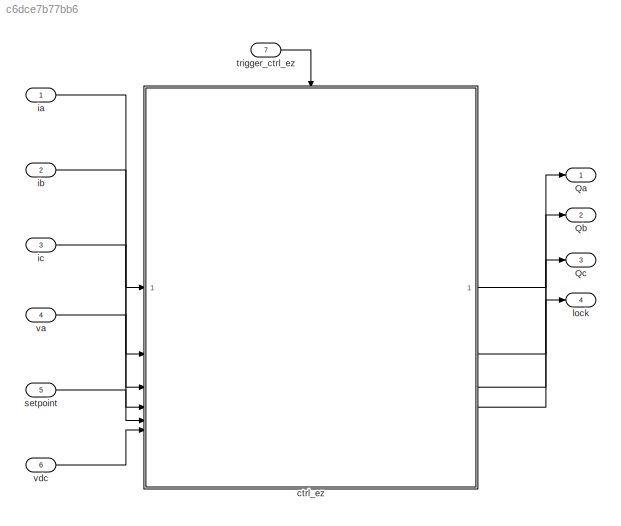
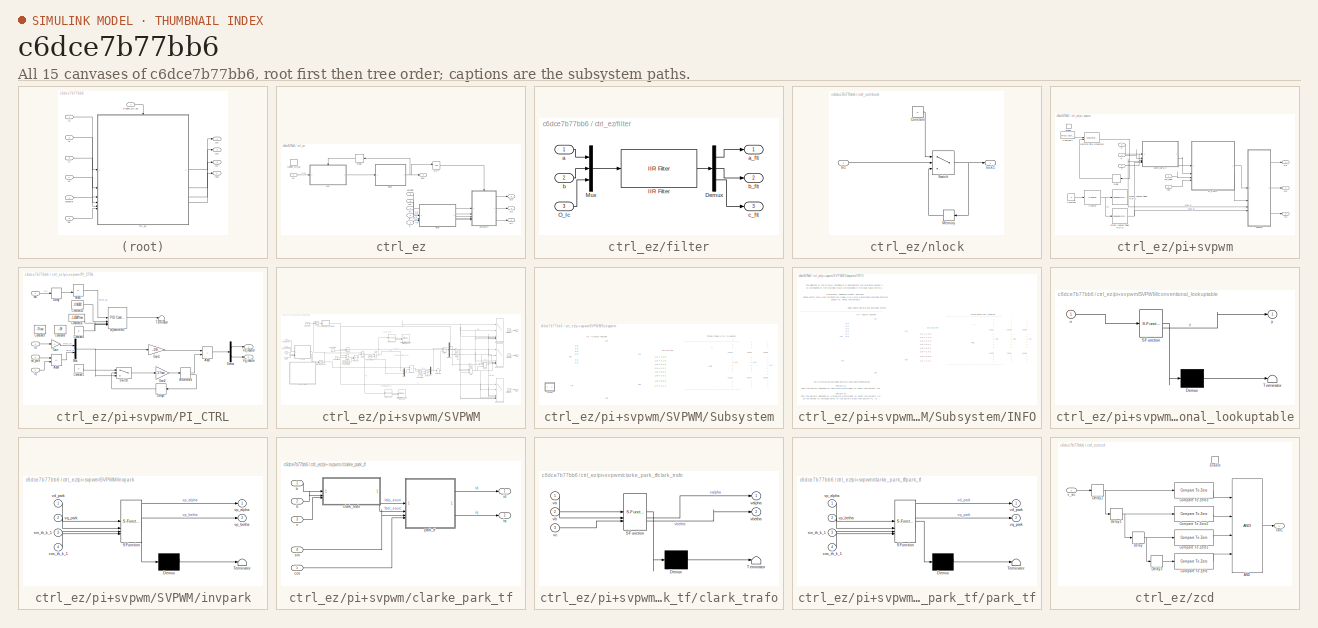
[diagram: thumbnail index - all 15 canvases of the model, root first then tree order]
MODEL slx_c6dce7b77bb6
KIND model
CONFIG AbsTol = auto
CONFIG EnableMultiTasking = on
CONFIG FixedStep = auto
CONFIG InitFcn = fidelity_pfc_vals;\n
CONFIG MaxStep = auto
CONFIG MinStep = auto
CONFIG RelTol = 1e-3
CONFIG SampleTimeConstraint = Unconstrained
CONFIG SolverName = FixedStepDiscrete
CONFIG StartTime = 0.0
CONFIG StopTime = 10.0
BLOCK [Outport] Qa
  OutDataTypeStr = single
  PortDimensions = 1
  SamplingMode = Sample based
  SignalType = real
BLOCK [Outport] Qb
  OutDataTypeStr = single
  Port = 2
  PortDimensions = 1
  SamplingMode = Sample based
  SignalType = real
BLOCK [Outport] Qc
  OutDataTypeStr = single
  Port = 3
  PortDimensions = 1
  SamplingMode = Sample based
  SignalType = real
BLOCK [SubSystem] ctrl_ez
BLOCK [Delay] ctrl_ez/Delay
  DelayLength = 1
  InputPortMap = u0
  NameLocation = top
BLOCK [Logic] ctrl_ez/NOT
  AllPortsSameDT = off
  IconShape = distinctive
  Operator = NOT
  OutDataTypeStr = boolean
BLOCK [Outport] ctrl_ez/Qa
  SignalType = real
  VarSizeSig = No
BLOCK [Outport] ctrl_ez/Qb
  Port = 2
  SignalType = real
  VarSizeSig = No
BLOCK [Outport] ctrl_ez/Qc
  Port = 3
  SignalType = real
  VarSizeSig = No
BLOCK [SubSystem] ctrl_ez/filter
  Commented = through
BLOCK [Demux] ctrl_ez/filter/Demux
  Outputs = 3
BLOCK [Reference] ctrl_ez/filter/IIR Filter  REF=mcbcontrolslib/IIR Filter
  SourceBlock = mcbcontrolslib/IIR Filter
  SourceType = IIR Filter
BLOCK [Mux] ctrl_ez/filter/Mux
  DisplayOption = bar
  Inputs = 3
BLOCK [Inport] ctrl_ez/filter/O_Ic
  Port = 3
BLOCK [Inport] ctrl_ez/filter/a
BLOCK [Outport] ctrl_ez/filter/a_flt
BLOCK [Inport] ctrl_ez/filter/b
  Port = 2
BLOCK [Outport] ctrl_ez/filter/b_flt
  Port = 2
BLOCK [Outport] ctrl_ez/filter/c_flt
  Port = 3
BLOCK [Inport] ctrl_ez/ia
  OutDataTypeStr = single
BLOCK [Inport] ctrl_ez/ib
  OutDataTypeStr = single
  Port = 2
BLOCK [Inport] ctrl_ez/ic
  Port = 3
BLOCK [Outport] ctrl_ez/lock
  Port = 4
BLOCK [SubSystem] ctrl_ez/nlock
BLOCK [Constant] ctrl_ez/nlock/Constant
  OutDataTypeStr = boolean
  SampleTime = -1
  Value = 0
BLOCK [Inport] ctrl_ez/nlock/In1
BLOCK [Memory] ctrl_ez/nlock/Memory
  InheritSampleTime = on
  InitialCondition = 1
  NameLocation = top
BLOCK [Switch] ctrl_ez/nlock/Switch
  Criteria = u2 > Threshold
  InputSameDT = off
  SaturateOnIntegerOverflow = off
BLOCK [Outport] ctrl_ez/nlock/lock1
BLOCK [SubSystem] ctrl_ez/pi+svpwm
BLOCK [Constant] ctrl_ez/pi+svpwm/Constant
  SampleTime = -1
  Value = 0
BLOCK [Constant] ctrl_ez/pi+svpwm/Constant1
  Commented = on
  SampleTime = -1
  Value = pi*2/(.01/tsw)
BLOCK [Reference] ctrl_ez/pi+svpwm/Counter  REF=dspswit3/Counter
  SourceBlock = dspswit3/Counter
  SourceType = Counter
BLOCK [Delay] ctrl_ez/pi+svpwm/Delay
  Commented = on
  InputPortMap = u0
  NameLocation = top
BLOCK [LookupNDDirect] ctrl_ez/pi+svpwm/Direct Lookup Table (n-D)1
  NumberOfTableDimensions = 1
  RemoveProtectionInput = on
  Table = single(sin_th);
  TableDataTypeStr = single
BLOCK [LookupNDDirect] ctrl_ez/pi+svpwm/Direct Lookup Table (n-D)2
  NumberOfTableDimensions = 1
  RemoveProtectionInput = on
  Table = single(cos_th);
  TableDataTypeStr = single
BLOCK [DiscreteIntegrator] ctrl_ez/pi+svpwm/Discrete-Time Integrator
  Commented = on
  ExternalReset = level
  ICPrevOutput = DiscIntNeverNeededParam
  ICPrevScaledInput = DiscIntNeverNeededParam
  InitialConditionSetting = Auto
  IntegratorMethod = Accumulation: Forward Euler
  LimitOutput = on
  SampleTime = -1
  SaturateOnIntegerOverflow = on
  ShowSaturationPort = on
  UpperSaturationLimit = pi*2
  gainval = 1
BLOCK [EnablePort] ctrl_ez/pi+svpwm/Enable
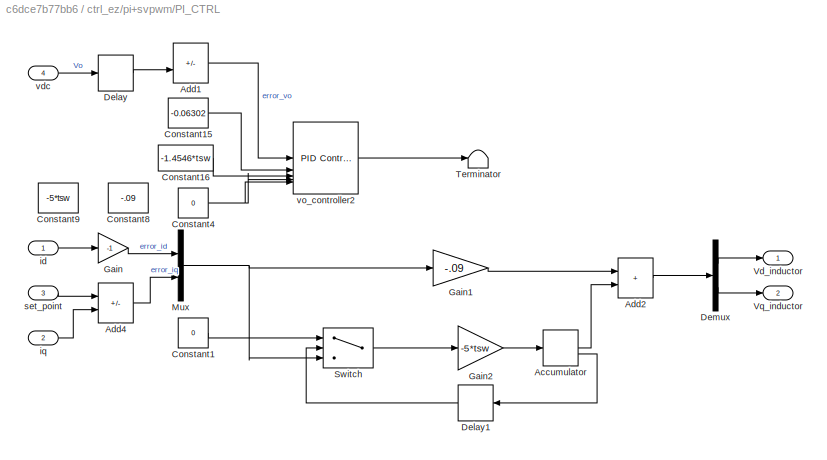
BLOCK [SubSystem] ctrl_ez/pi+svpwm/PI_CTRL
  SystemSampleTime = tsw
BLOCK [DiscreteIntegrator] ctrl_ez/pi+svpwm/PI_CTRL/Accumulator
  ICPrevOutput = DiscIntNeverNeededParam
  ICPrevScaledInput = DiscIntNeverNeededParam
  InitialConditionSetting = Auto
  IntegratorMethod = Accumulation: Forward Euler
  LowerSaturationLimit = -50
  SampleTime = -1
  ShowSaturationPort = on
  UpperSaturationLimit = 50
BLOCK [Sum] ctrl_ez/pi+svpwm/PI_CTRL/Add1
  Commented = on
  IconShape = rectangular
  Inputs = +-
BLOCK [Sum] ctrl_ez/pi+svpwm/PI_CTRL/Add2
  IconShape = rectangular
BLOCK [Sum] ctrl_ez/pi+svpwm/PI_CTRL/Add4
  IconShape = rectangular
  Inputs = +-
BLOCK [Constant] ctrl_ez/pi+svpwm/PI_CTRL/Constant1
  OutDataTypeStr = single
  SampleTime = -1
  Value = 0
BLOCK [Constant] ctrl_ez/pi+svpwm/PI_CTRL/Constant15
  Commented = on
  OutDataTypeStr = single
  SampleTime = -1
  Value = -0.06302
BLOCK [Constant] ctrl_ez/pi+svpwm/PI_CTRL/Constant16
  Commented = on
  OutDataTypeStr = single
  SampleTime = -1
  Value = -1.4546*tsw
BLOCK [Constant] ctrl_ez/pi+svpwm/PI_CTRL/Constant4
  OutDataTypeStr = single
  SampleTime = -1
  Value = 0
BLOCK [Constant] ctrl_ez/pi+svpwm/PI_CTRL/Constant8
  OutDataTypeStr = single
  SampleTime = -1
  Value = -.09
BLOCK [Constant] ctrl_ez/pi+svpwm/PI_CTRL/Constant9
  OutDataTypeStr = single
  SampleTime = -1
  Value = -5*tsw
BLOCK [Delay] ctrl_ez/pi+svpwm/PI_CTRL/Delay
  Commented = on
  DelayLength = 1
  InitialCondition = 580
  InputPortMap = u0
BLOCK [Delay] ctrl_ez/pi+svpwm/PI_CTRL/Delay1
  DelayLength = 1
  InputPortMap = u0
  InputProcessing = Columns as channels (frame based)
  NameLocation = top
BLOCK [Demux] ctrl_ez/pi+svpwm/PI_CTRL/Demux
  Outputs = 2
BLOCK [Gain] ctrl_ez/pi+svpwm/PI_CTRL/Gain
  Gain = -1
  OutDataTypeStr = single
BLOCK [Gain] ctrl_ez/pi+svpwm/PI_CTRL/Gain1
  Gain = -.09
  OutDataTypeStr = single
BLOCK [Gain] ctrl_ez/pi+svpwm/PI_CTRL/Gain2
  Gain = -5*tsw
  OutDataTypeStr = single
BLOCK [Mux] ctrl_ez/pi+svpwm/PI_CTRL/Mux
  DisplayOption = bar
  Inputs = 2
BLOCK [Switch] ctrl_ez/pi+svpwm/PI_CTRL/Switch
  Criteria = u2 > Threshold
  InputSameDT = off
  SaturateOnIntegerOverflow = off
BLOCK [Terminator] ctrl_ez/pi+svpwm/PI_CTRL/Terminator
BLOCK [Outport] ctrl_ez/pi+svpwm/PI_CTRL/Vd_inductor
BLOCK [Outport] ctrl_ez/pi+svpwm/PI_CTRL/Vq_inductor
  Port = 2
BLOCK [Inport] ctrl_ez/pi+svpwm/PI_CTRL/id
BLOCK [Inport] ctrl_ez/pi+svpwm/PI_CTRL/iq
  OutDataTypeStr = single
  Port = 2
BLOCK [Inport] ctrl_ez/pi+svpwm/PI_CTRL/set_point
  Port = 3
BLOCK [Inport] ctrl_ez/pi+svpwm/PI_CTRL/vdc
  Port = 4
BLOCK [Reference] ctrl_ez/pi+svpwm/PI_CTRL/vo_controller2  REF=slpidlib/PID Controller
  Commented = on
  NameLocation = right
  SourceBlock = slpidlib/PID Controller
  SourceType = PID 1dof
BLOCK [Outport] ctrl_ez/pi+svpwm/Qa
BLOCK [Outport] ctrl_ez/pi+svpwm/Qb
  Port = 2
BLOCK [Outport] ctrl_ez/pi+svpwm/Qc
  Port = 3
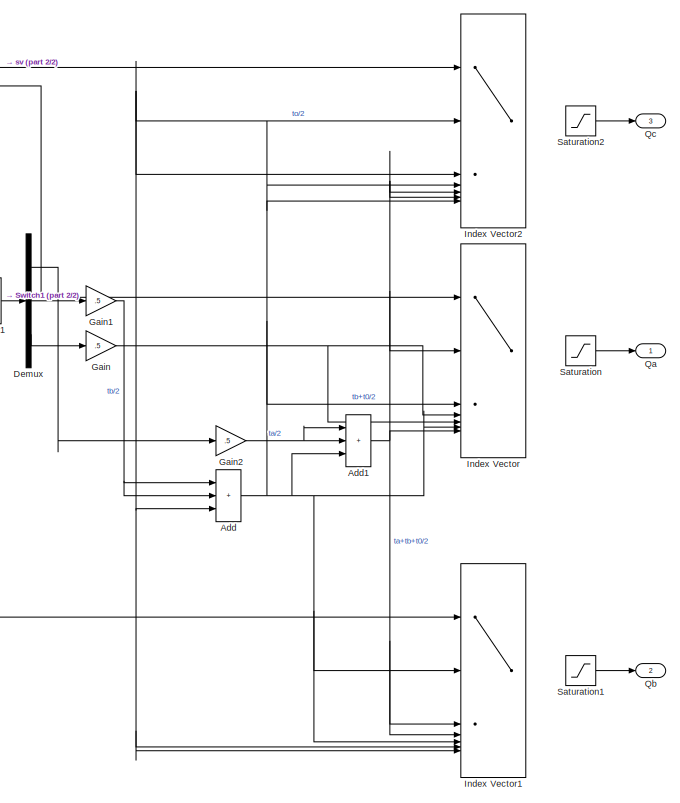
[diagram: ctrl_ez/pi+svpwm/SVPWM - part 1/2, right side, full height]
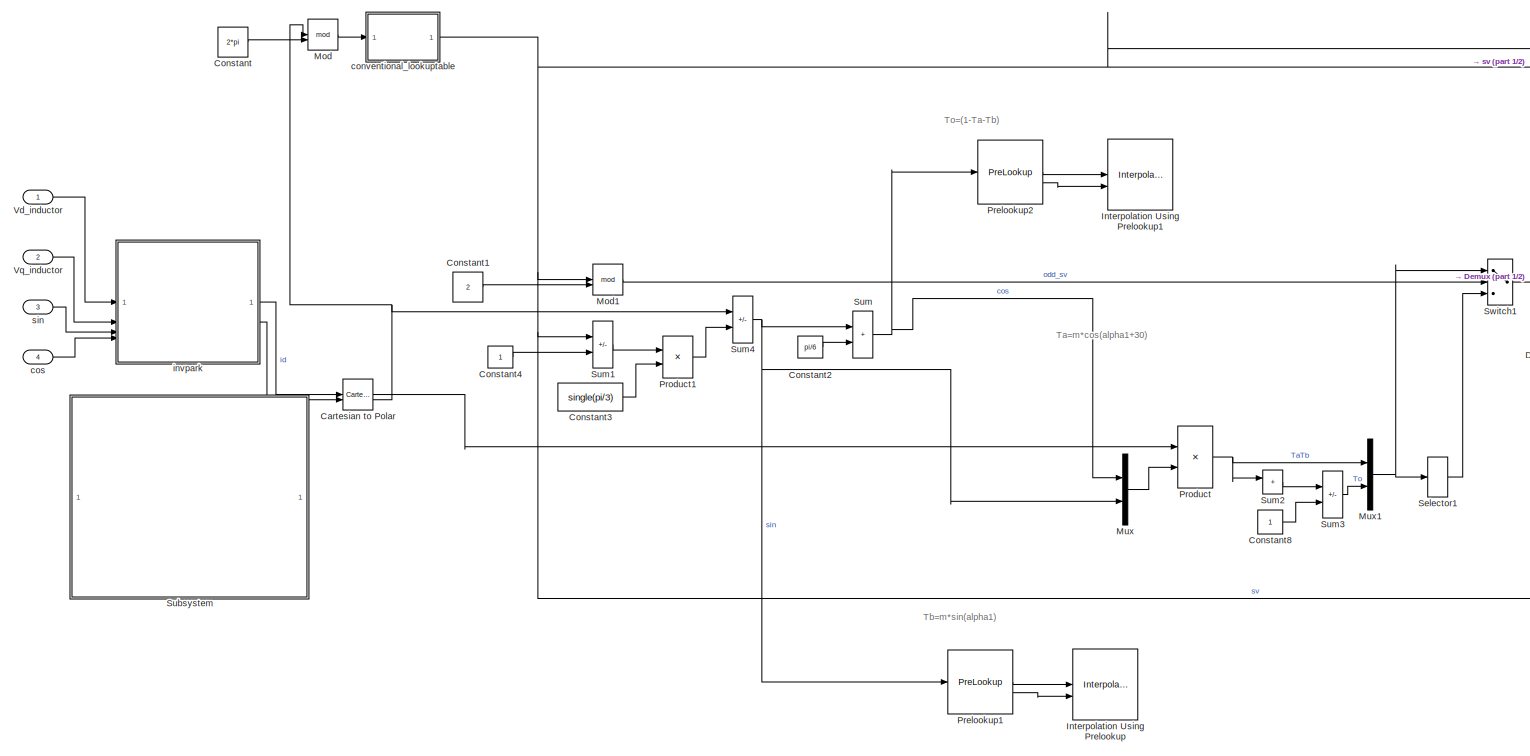
[diagram: ctrl_ez/pi+svpwm/SVPWM - part 2/2, center side, full height]
BLOCK [SubSystem] ctrl_ez/pi+svpwm/SVPWM
  SystemSampleTime = tsw
BLOCK [Sum] ctrl_ez/pi+svpwm/SVPWM/Add
  Commented = on
  IconShape = rectangular
  Inputs = +++
BLOCK [Sum] ctrl_ez/pi+svpwm/SVPWM/Add1
  Commented = on
  IconShape = rectangular
  Inputs = +++
BLOCK [Reference] ctrl_ez/pi+svpwm/SVPWM/Cartesian to Polar  REF=simulink_extras/Transformations/Cartesian to
Polar
  SourceBlock = simulink_extras/Transformations/Cartesian to\nPolar
  SourceType = Cart2Polar
BLOCK [Constant] ctrl_ez/pi+svpwm/SVPWM/Constant
  OutDataTypeStr = single
  SampleTime = -1
  Value = 2*pi
BLOCK [Constant] ctrl_ez/pi+svpwm/SVPWM/Constant1
  Commented = on
  OutDataTypeStr = single
  SampleTime = -1
  Value = 2
BLOCK [Constant] ctrl_ez/pi+svpwm/SVPWM/Constant2
  Commented = on
  OutDataTypeStr = single
  SampleTime = -1
  Value = pi/6
BLOCK [Constant] ctrl_ez/pi+svpwm/SVPWM/Constant3
  OutDataTypeStr = single
  SampleTime = -1
  Value = single(pi/3)
  VectorParams1D = off
BLOCK [Constant] ctrl_ez/pi+svpwm/SVPWM/Constant4
  OutDataTypeStr = single
  SampleTime = -1
BLOCK [Constant] ctrl_ez/pi+svpwm/SVPWM/Constant8
  Commented = on
  OutDataTypeStr = single
  SampleTime = -1
BLOCK [Demux] ctrl_ez/pi+svpwm/SVPWM/Demux
  Commented = on
  Outputs = 3
BLOCK [Gain] ctrl_ez/pi+svpwm/SVPWM/Gain
  Commented = on
  Gain = .5
  OutDataTypeStr = single
BLOCK [Gain] ctrl_ez/pi+svpwm/SVPWM/Gain1
  Commented = on
  Gain = .5
  OutDataTypeStr = single
BLOCK [Gain] ctrl_ez/pi+svpwm/SVPWM/Gain2
  Commented = on
  Gain = .5
  OutDataTypeStr = single
BLOCK [MultiPortSwitch] ctrl_ez/pi+svpwm/SVPWM/Index Vector
  Commented = on
  DiagnosticForDefault = None
  InputSameDT = off
  Inputs = 6
  SaturateOnIntegerOverflow = off
BLOCK [MultiPortSwitch] ctrl_ez/pi+svpwm/SVPWM/Index Vector1
  Commented = on
  DiagnosticForDefault = None
  InputSameDT = off
  Inputs = 6
  SaturateOnIntegerOverflow = off
BLOCK [MultiPortSwitch] ctrl_ez/pi+svpwm/SVPWM/Index Vector2
  Commented = on
  DiagnosticForDefault = None
  InputSameDT = off
  Inputs = 6
  SaturateOnIntegerOverflow = off
BLOCK [Interpolation_n-D] ctrl_ez/pi+svpwm/SVPWM/Interpolation Using Prelookup
  Commented = on
  InputPortMap = u0,u1
  IntermediateResultsDataTypeStr = Inherit: Inherit via internal rule
  InternalRulePriority = Speed
  InterpMethod = Flat
  NumberOfTableDimensions = 1
  RemoveProtectionIndex = on
  Table = single(sin(0:2*pi/1024:2*pi))
  ValidIndexMayReachLast = on
BLOCK [Interpolation_n-D] ctrl_ez/pi+svpwm/SVPWM/Interpolation Using Prelookup1
  Commented = on
  InputPortMap = u0,u1
  IntermediateResultsDataTypeStr = Inherit: Inherit via internal rule
  InternalRulePriority = Speed
  InterpMethod = Flat
  NumberOfTableDimensions = 1
  RemoveProtectionIndex = on
  Table = single(cos(0:2*pi/1024:2*pi))
  ValidIndexMayReachLast = on
BLOCK [Math] ctrl_ez/pi+svpwm/SVPWM/Mod
  Operator = mod
BLOCK [Math] ctrl_ez/pi+svpwm/SVPWM/Mod1
  Commented = on
  Operator = mod
BLOCK [Mux] ctrl_ez/pi+svpwm/SVPWM/Mux
  Commented = on
  DisplayOption = bar
  Inputs = 2
BLOCK [Mux] ctrl_ez/pi+svpwm/SVPWM/Mux1
  Commented = on
  DisplayOption = bar
  Inputs = 2
BLOCK [PreLookup] ctrl_ez/pi+svpwm/SVPWM/Prelookup1
  BeginIndexSearchUsingPreviousIndexResult = on
  BreakpointsData = single((0:2*pi/1024:2*pi))
  Commented = on
  IndexSearchMethod = Evenly spaced points
  InputPortMap = u0
  UseLastBreakpoint = on
BLOCK [PreLookup] ctrl_ez/pi+svpwm/SVPWM/Prelookup2
  BeginIndexSearchUsingPreviousIndexResult = on
  BreakpointsData = single((0:2*pi/1024:2*pi))
  Commented = on
  IndexSearchMethod = Evenly spaced points
  InputPortMap = u0
  UseLastBreakpoint = on
BLOCK [Product] ctrl_ez/pi+svpwm/SVPWM/Product
  Commented = on
  OutDataTypeStr = Inherit: Same as first input
  SaturateOnIntegerOverflow = on
BLOCK [Product] ctrl_ez/pi+svpwm/SVPWM/Product1
  OutDataTypeStr = single
BLOCK [Outport] ctrl_ez/pi+svpwm/SVPWM/Qa
BLOCK [Outport] ctrl_ez/pi+svpwm/SVPWM/Qb
  Port = 2
BLOCK [Outport] ctrl_ez/pi+svpwm/SVPWM/Qc
  Port = 3
BLOCK [Saturate] ctrl_ez/pi+svpwm/SVPWM/Saturation
  LowerLimit = .03
  UpperLimit = .98
BLOCK [Saturate] ctrl_ez/pi+svpwm/SVPWM/Saturation1
  LowerLimit = .03
  UpperLimit = .98
BLOCK [Saturate] ctrl_ez/pi+svpwm/SVPWM/Saturation2
  LowerLimit = .03
  UpperLimit = .98
BLOCK [Selector] ctrl_ez/pi+svpwm/SVPWM/Selector1
  Commented = on
  IndexOptions = Index vector (dialog)
  Indices = [2 1 3]
  InputPortWidth = 3
  OutputSizes = 1
BLOCK [SubSystem] ctrl_ez/pi+svpwm/SVPWM/Subsystem
BLOCK [SubSystem] ctrl_ez/pi+svpwm/SVPWM/Subsystem/INFO
BLOCK [Sum] ctrl_ez/pi+svpwm/SVPWM/Sum
  Commented = on
  IconShape = rectangular
  SaturateOnIntegerOverflow = on
BLOCK [Sum] ctrl_ez/pi+svpwm/SVPWM/Sum1
  IconShape = rectangular
  Inputs = +-
  SaturateOnIntegerOverflow = on
BLOCK [Sum] ctrl_ez/pi+svpwm/SVPWM/Sum2
  Commented = on
  IconShape = rectangular
  Inputs = 1
  SaturateOnIntegerOverflow = on
BLOCK [Sum] ctrl_ez/pi+svpwm/SVPWM/Sum3
  Commented = on
  IconShape = rectangular
  Inputs = -+
  SaturateOnIntegerOverflow = on
BLOCK [Sum] ctrl_ez/pi+svpwm/SVPWM/Sum4
  IconShape = rectangular
  Inputs = +-
  SaturateOnIntegerOverflow = on
BLOCK [Switch] ctrl_ez/pi+svpwm/SVPWM/Switch1
  Commented = on
  InputSameDT = off
  Threshold = 0.5
BLOCK [Inport] ctrl_ez/pi+svpwm/SVPWM/Vd_inductor
BLOCK [Inport] ctrl_ez/pi+svpwm/SVPWM/Vq_inductor
  Port = 2
BLOCK [SubSystem] ctrl_ez/pi+svpwm/SVPWM/conventional_lookuptable
  ErrorFcn = Stateflow.Translate.translate
  PermitHierarchicalResolution = ExplicitOnly
  SFBlockType = MATLAB Function
  TreatAsAtomicUnit = on
BLOCK [Demux] ctrl_ez/pi+svpwm/SVPWM/conventional_lookuptable/ Demux 
  Outputs = 1
BLOCK [S-Function] ctrl_ez/pi+svpwm/SVPWM/conventional_lookuptable/ SFunction 
  EnableBusSupport = on
  FunctionName = sf_sfun
  PortCounts = [1 2]
  SFcnIsStateOwnerBlock = off
  SFunctionDeploymentMode = off
  Tag = Stateflow S-Function 2
BLOCK [Terminator] ctrl_ez/pi+svpwm/SVPWM/conventional_lookuptable/ Terminator 
BLOCK [Inport] ctrl_ez/pi+svpwm/SVPWM/conventional_lookuptable/u
BLOCK [Outport] ctrl_ez/pi+svpwm/SVPWM/conventional_lookuptable/y
BLOCK [Inport] ctrl_ez/pi+svpwm/SVPWM/cos
  Port = 4
BLOCK [SubSystem] ctrl_ez/pi+svpwm/SVPWM/invpark
  ErrorFcn = Stateflow.Translate.translate
  LibrarySourceBlock = simulink/User-Defined\nFunctions/MATLAB Function
  PermitHierarchicalResolution = ExplicitOnly
  SFBlockType = MATLAB Function
  TreatAsAtomicUnit = on
  VariantControl = false()
BLOCK [Demux] ctrl_ez/pi+svpwm/SVPWM/invpark/ Demux 
  Outputs = 1
BLOCK [S-Function] ctrl_ez/pi+svpwm/SVPWM/invpark/ SFunction 
  EnableBusSupport = on
  FunctionName = sf_sfun
  PortCounts = [4 3]
  SFcnIsStateOwnerBlock = off
  SFunctionDeploymentMode = off
  Tag = Stateflow S-Function 1
BLOCK [Terminator] ctrl_ez/pi+svpwm/SVPWM/invpark/ Terminator 
BLOCK [Inport] ctrl_ez/pi+svpwm/SVPWM/invpark/cos_th_k_1
  Port = 4
BLOCK [Inport] ctrl_ez/pi+svpwm/SVPWM/invpark/sin_th_k_1
  Port = 3
BLOCK [Inport] ctrl_ez/pi+svpwm/SVPWM/invpark/vd_park
BLOCK [Outport] ctrl_ez/pi+svpwm/SVPWM/invpark/vp_alpha
BLOCK [Outport] ctrl_ez/pi+svpwm/SVPWM/invpark/vp_betha
  Port = 2
BLOCK [Inport] ctrl_ez/pi+svpwm/SVPWM/invpark/vq_park
  Port = 2
BLOCK [Inport] ctrl_ez/pi+svpwm/SVPWM/sin
  Port = 3
BLOCK [Inport] ctrl_ez/pi+svpwm/a
  Port = 3
BLOCK [Inport] ctrl_ez/pi+svpwm/b
  Port = 4
BLOCK [Inport] ctrl_ez/pi+svpwm/c
  Port = 5
BLOCK [SubSystem] ctrl_ez/pi+svpwm/clarke_park_tf
BLOCK [Inport] ctrl_ez/pi+svpwm/clarke_park_tf/a
BLOCK [Inport] ctrl_ez/pi+svpwm/clarke_park_tf/b
  Port = 2
BLOCK [Inport] ctrl_ez/pi+svpwm/clarke_park_tf/c
  Port = 3
BLOCK [SubSystem] ctrl_ez/pi+svpwm/clarke_park_tf/clark_trafo
  ErrorFcn = Stateflow.Translate.translate
  LibrarySourceBlock = simulink/User-Defined\nFunctions/MATLAB Function
  PermitHierarchicalResolution = ExplicitOnly
  SFBlockType = MATLAB Function
  TreatAsAtomicUnit = on
BLOCK [Demux] ctrl_ez/pi+svpwm/clarke_park_tf/clark_trafo/ Demux 
  Outputs = 1
BLOCK [S-Function] ctrl_ez/pi+svpwm/clarke_park_tf/clark_trafo/ SFunction 
  EnableBusSupport = on
  FunctionName = sf_sfun
  PortCounts = [3 3]
  SFcnIsStateOwnerBlock = off
  SFunctionDeploymentMode = off
  Tag = Stateflow S-Function 10
BLOCK [Terminator] ctrl_ez/pi+svpwm/clarke_park_tf/clark_trafo/ Terminator 
BLOCK [Inport] ctrl_ez/pi+svpwm/clarke_park_tf/clark_trafo/va
BLOCK [Outport] ctrl_ez/pi+svpwm/clarke_park_tf/clark_trafo/valpha
BLOCK [Inport] ctrl_ez/pi+svpwm/clarke_park_tf/clark_trafo/vb
  Port = 2
BLOCK [Outport] ctrl_ez/pi+svpwm/clarke_park_tf/clark_trafo/vbetha
  Port = 2
BLOCK [Inport] ctrl_ez/pi+svpwm/clarke_park_tf/clark_trafo/vc
  Port = 3
BLOCK [Inport] ctrl_ez/pi+svpwm/clarke_park_tf/cos
  Port = 5
BLOCK [Outport] ctrl_ez/pi+svpwm/clarke_park_tf/id
BLOCK [Outport] ctrl_ez/pi+svpwm/clarke_park_tf/iq
  Port = 2
BLOCK [SubSystem] ctrl_ez/pi+svpwm/clarke_park_tf/park_tf
  ErrorFcn = Stateflow.Translate.translate
  LibrarySourceBlock = simulink/User-Defined\nFunctions/MATLAB Function
  PermitHierarchicalResolution = ExplicitOnly
  SFBlockType = MATLAB Function
  TreatAsAtomicUnit = on
  VariantControl = false()
BLOCK [Demux] ctrl_ez/pi+svpwm/clarke_park_tf/park_tf/ Demux 
  Outputs = 1
BLOCK [S-Function] ctrl_ez/pi+svpwm/clarke_park_tf/park_tf/ SFunction 
  EnableBusSupport = on
  FunctionName = sf_sfun
  PortCounts = [4 3]
  SFcnIsStateOwnerBlock = off
  SFunctionDeploymentMode = off
  Tag = Stateflow S-Function 24
BLOCK [Terminator] ctrl_ez/pi+svpwm/clarke_park_tf/park_tf/ Terminator 
BLOCK [Inport] ctrl_ez/pi+svpwm/clarke_park_tf/park_tf/cos_th_k_1
  Port = 4
BLOCK [Inport] ctrl_ez/pi+svpwm/clarke_park_tf/park_tf/sin_th_k_1
  Port = 3
BLOCK [Outport] ctrl_ez/pi+svpwm/clarke_park_tf/park_tf/vd_park
BLOCK [Inport] ctrl_ez/pi+svpwm/clarke_park_tf/park_tf/vp_alpha
BLOCK [Inport] ctrl_ez/pi+svpwm/clarke_park_tf/park_tf/vp_betha
  Port = 2
BLOCK [Outport] ctrl_ez/pi+svpwm/clarke_park_tf/park_tf/vq_park
  Port = 2
BLOCK [Inport] ctrl_ez/pi+svpwm/clarke_park_tf/sin
  Port = 4
BLOCK [Inport] ctrl_ez/pi+svpwm/set_point
BLOCK [Inport] ctrl_ez/pi+svpwm/vdc
  Port = 2
BLOCK [Inport] ctrl_ez/setpoint
  OutDataTypeStr = single
  Port = 5
BLOCK [TriggerPort] ctrl_ez/trigger_ctrl_ez
  PortDimensions = 1
  StatesWhenEnabling = held
  TriggerType = function-call
  VariantControl = (inherit)
BLOCK [Inport] ctrl_ez/va
  OutDataTypeStr = single
  Port = 4
BLOCK [Inport] ctrl_ez/vdc
  OutDataTypeStr = single
  Port = 6
BLOCK [SubSystem] ctrl_ez/zcd
  SystemSampleTime = tsw
BLOCK [Logic] ctrl_ez/zcd/AND
  AllPortsSameDT = off
  Inputs = 4
  OutDataTypeStr = boolean
BLOCK [Reference] ctrl_ez/zcd/Compare To Zero  REF=simulink/Logic and Bit
Operations/Compare
To Zero
  SourceBlock = simulink/Logic and Bit\nOperations/Compare\nTo Zero
  SourceType = Compare To Zero
BLOCK [Reference] ctrl_ez/zcd/Compare To Zero1  REF=simulink/Logic and Bit
Operations/Compare
To Zero
  SourceBlock = simulink/Logic and Bit\nOperations/Compare\nTo Zero
  SourceType = Compare To Zero
BLOCK [Reference] ctrl_ez/zcd/Compare To Zero2  REF=simulink/Logic and Bit
Operations/Compare
To Zero
  SourceBlock = simulink/Logic and Bit\nOperations/Compare\nTo Zero
  SourceType = Compare To Zero
BLOCK [Reference] ctrl_ez/zcd/Compare To Zero3  REF=simulink/Logic and Bit
Operations/Compare
To Zero
  SourceBlock = simulink/Logic and Bit\nOperations/Compare\nTo Zero
  SourceType = Compare To Zero
BLOCK [Delay] ctrl_ez/zcd/Delay
  DelayLength = 4
  InputPortMap = u0
BLOCK [Delay] ctrl_ez/zcd/Delay1
  DelayLength = 1
  InputPortMap = u0
BLOCK [Delay] ctrl_ez/zcd/Delay2
  DelayLength = 0
  InputPortMap = u0
BLOCK [Delay] ctrl_ez/zcd/Delay3
  DelayLength = 5
  InputPortMap = u0
BLOCK [EnablePort] ctrl_ez/zcd/Enable
BLOCK [Outport] ctrl_ez/zcd/Out1
BLOCK [Inport] ctrl_ez/zcd/v_ac
  OutDataTypeStr = single
BLOCK [Inport] ia
  OutDataTypeStr = single
  PortDimensions = 1
  SamplingMode = Sample based
  SignalType = real
BLOCK [Inport] ib
  OutDataTypeStr = single
  Port = 2
  PortDimensions = 1
  SamplingMode = Sample based
  SignalType = real
BLOCK [Inport] ic
  OutDataTypeStr = single
  Port = 3
  PortDimensions = 1
  SamplingMode = Sample based
  SignalType = real
BLOCK [Outport] lock
  OutDataTypeStr = boolean
  Port = 4
  PortDimensions = 1
  SamplingMode = Sample based
  SignalType = real
BLOCK [Inport] setpoint
  OutDataTypeStr = single
  Port = 5
  PortDimensions = 1
  SamplingMode = Sample based
  SignalType = real
BLOCK [Inport] trigger_ctrl_ez
  OutputFunctionCall = on
  Port = 7
  PortDimensions = 1
  SamplingMode = Sample based
  SignalType = real
BLOCK [Inport] va
  OutDataTypeStr = single
  Port = 4
  PortDimensions = 1
  SamplingMode = Sample based
  SignalType = real
BLOCK [Inport] vdc
  OutDataTypeStr = single
  Port = 6
  PortDimensions = 1
  SamplingMode = Sample based
  SignalType = real
ANNOTATION ctrl_ez/pi+svpwm/SVPWM: Ta=m*cos(alpha1+30)
ANNOTATION ctrl_ez/pi+svpwm/SVPWM: Tb=m*sin(alpha1)
ANNOTATION ctrl_ez/pi+svpwm/SVPWM: To=(1-Ta-Tb)
ANNOTATION ctrl_ez/pi+svpwm/SVPWM/Subsystem: 3 2 3 2 3 2 3 2 3 2 3 2 4 4 4 4 4 4 4 4 0 1 1 1 1 1 1 1 1 5 6 5 6 5 6 5 6 5 6 5 6
ANNOTATION ctrl_ez/pi+svpwm/SVPWM/Subsystem: +
ANNOTATION ctrl_ez/pi+svpwm/SVPWM/Subsystem: -
ANNOTATION ctrl_ez/pi+svpwm/SVPWM/Subsystem: --------------------------------------------------------
ANNOTATION ctrl_ez/pi+svpwm/SVPWM/Subsystem: ---Va
ANNOTATION ctrl_ez/pi+svpwm/SVPWM/Subsystem: ---Vb
ANNOTATION ctrl_ez/pi+svpwm/SVPWM/Subsystem: ---Vc
ANNOTATION ctrl_ez/pi+svpwm/SVPWM/Subsystem: Q1 Q3 Q5
ANNOTATION ctrl_ez/pi+svpwm/SVPWM/Subsystem: Three-Phase VSC Diagram
ANNOTATION ctrl_ez/pi+svpwm/SVPWM/Subsystem: U0 = 0 0 0
ANNOTATION ctrl_ez/pi+svpwm/SVPWM/Subsystem: U1 = 1 0 0
ANNOTATION ctrl_ez/pi+svpwm/SVPWM/Subsystem: U2 = 1 1 0
ANNOTATION ctrl_ez/pi+svpwm/SVPWM/Subsystem: U3 = 0 1 0
ANNOTATION ctrl_ez/pi+svpwm/SVPWM/Subsystem: U4 = 0 1 1
ANNOTATION ctrl_ez/pi+svpwm/SVPWM/Subsystem: U5 = 0 0 1
ANNOTATION ctrl_ez/pi+svpwm/SVPWM/Subsystem: U6 = 1 0 1
ANNOTATION ctrl_ez/pi+svpwm/SVPWM/Subsystem: U7 = 1 1 1
ANNOTATION ctrl_ez/pi+svpwm/SVPWM/Subsystem: Vdc
ANNOTATION ctrl_ez/pi+svpwm/SVPWM/Subsystem: [1]
ANNOTATION ctrl_ez/pi+svpwm/SVPWM/Subsystem: [2]
ANNOTATION ctrl_ez/pi+svpwm/SVPWM/Subsystem: [3]
ANNOTATION ctrl_ez/pi+svpwm/SVPWM/Subsystem: [4]
ANNOTATION ctrl_ez/pi+svpwm/SVPWM/Subsystem: [5]
ANNOTATION ctrl_ez/pi+svpwm/SVPWM/Subsystem: [6]
ANNOTATION ctrl_ez/pi+svpwm/SVPWM/Subsystem: [Q1]
ANNOTATION ctrl_ez/pi+svpwm/SVPWM/Subsystem: [Q2]
ANNOTATION ctrl_ez/pi+svpwm/SVPWM/Subsystem: [Q3]
ANNOTATION ctrl_ez/pi+svpwm/SVPWM/Subsystem: [Q4]
ANNOTATION ctrl_ez/pi+svpwm/SVPWM/Subsystem: [Q5]
ANNOTATION ctrl_ez/pi+svpwm/SVPWM/Subsystem: [Q6]
ANNOTATION ctrl_ez/pi+svpwm/SVPWM/Subsystem: [n] = Sector number
ANNOTATION ctrl_ez/pi+svpwm/SVPWM/Subsystem: | | |
ANNOTATION ctrl_ez/pi+svpwm/SVPWM/Subsystem: | | | | | |
ANNOTATION ctrl_ez/pi+svpwm/SVPWM/Subsystem/INFO: 3 2 3 2 3 2 3 2 3 2 3 2 4 4 4 4 4 4 4 4 0 1 1 1 1 1 1 1 1 5 6 5 6 5 6 5 6 5 6 5 6
ANNOTATION ctrl_ez/pi+svpwm/SVPWM/Subsystem/INFO: +
ANNOTATION ctrl_ez/pi+svpwm/SVPWM/Subsystem/INFO: -
ANNOTATION ctrl_ez/pi+svpwm/SVPWM/Subsystem/INFO: --------------------------------------------------------
ANNOTATION ctrl_ez/pi+svpwm/SVPWM/Subsystem/INFO: --------------------------------------------------------------------------------------------------------------------------------------------------------------------
ANNOTATION ctrl_ez/pi+svpwm/SVPWM/Subsystem/INFO: ---Va
ANNOTATION ctrl_ez/pi+svpwm/SVPWM/Subsystem/INFO: ---Vb
ANNOTATION ctrl_ez/pi+svpwm/SVPWM/Subsystem/INFO: ---Vc
ANNOTATION ctrl_ez/pi+svpwm/SVPWM/Subsystem/INFO: Basic Space Vectors and Switching States
ANNOTATION ctrl_ez/pi+svpwm/SVPWM/Subsystem/INFO: Pattern #1: With this pattern, identified as "Software-Determined" by Texas Instruments, each PWM channel switches twice per every PWM period.
ANNOTATION ctrl_ez/pi+svpwm/SVPWM/Subsystem/INFO: Pattern #2: With this pattern, identified as "Hardware-Determined" by Texas Instruments, there is always one PWM channel staying constant for the entire PWM period. So the number of switching times for this pattern is less than pattern #1. As a result, switching losses will be reduced with Pattern #2.
ANNOTATION ctrl_ez/pi+svpwm/SVPWM/Subsystem/INFO: Q1 Q3 Q5
ANNOTATION ctrl_ez/pi+svpwm/SVPWM/Subsystem/INFO: Reference: Application Report SPRA524 Space-Vector PWM with TMS320C24x Using H/W & S/W Determined Switching Patterns Zhenyu Yu, Texas Instruments
ANNOTATION ctrl_ez/pi+svpwm/SVPWM/Subsystem/INFO: The objective of the SV PWM technique is to approximate the reference voltage vector (U*) instantaneously by combination of the switching states corresponding to the basic space vectors.
ANNOTATION ctrl_ez/pi+svpwm/SVPWM/Subsystem/INFO: Three-Phase VSC Diagram
ANNOTATION ctrl_ez/pi+svpwm/SVPWM/Subsystem/INFO: Two symmetrical switching patterns have been implemented:
ANNOTATION ctrl_ez/pi+svpwm/SVPWM/Subsystem/INFO: U0 = 0 0 0
ANNOTATION ctrl_ez/pi+svpwm/SVPWM/Subsystem/INFO: U1 = 1 0 0
ANNOTATION ctrl_ez/pi+svpwm/SVPWM/Subsystem/INFO: U2 = 1 1 0
ANNOTATION ctrl_ez/pi+svpwm/SVPWM/Subsystem/INFO: U3 = 0 1 0
ANNOTATION ctrl_ez/pi+svpwm/SVPWM/Subsystem/INFO: U4 = 0 1 1
ANNOTATION ctrl_ez/pi+svpwm/SVPWM/Subsystem/INFO: U5 = 0 0 1
ANNOTATION ctrl_ez/pi+svpwm/SVPWM/Subsystem/INFO: U6 = 1 0 1
ANNOTATION ctrl_ez/pi+svpwm/SVPWM/Subsystem/INFO: U7 = 1 1 1
ANNOTATION ctrl_ez/pi+svpwm/SVPWM/Subsystem/INFO: Vdc
ANNOTATION ctrl_ez/pi+svpwm/SVPWM/Subsystem/INFO: [1]
ANNOTATION ctrl_ez/pi+svpwm/SVPWM/Subsystem/INFO: [2]
ANNOTATION ctrl_ez/pi+svpwm/SVPWM/Subsystem/INFO: [3]
ANNOTATION ctrl_ez/pi+svpwm/SVPWM/Subsystem/INFO: [4]
ANNOTATION ctrl_ez/pi+svpwm/SVPWM/Subsystem/INFO: [5]
ANNOTATION ctrl_ez/pi+svpwm/SVPWM/Subsystem/INFO: [6]
ANNOTATION ctrl_ez/pi+svpwm/SVPWM/Subsystem/INFO: [Q1]
ANNOTATION ctrl_ez/pi+svpwm/SVPWM/Subsystem/INFO: [Q2]
ANNOTATION ctrl_ez/pi+svpwm/SVPWM/Subsystem/INFO: [Q3]
ANNOTATION ctrl_ez/pi+svpwm/SVPWM/Subsystem/INFO: [Q4]
ANNOTATION ctrl_ez/pi+svpwm/SVPWM/Subsystem/INFO: [Q5]
ANNOTATION ctrl_ez/pi+svpwm/SVPWM/Subsystem/INFO: [Q6]
ANNOTATION ctrl_ez/pi+svpwm/SVPWM/Subsystem/INFO: [n] = Sector number
ANNOTATION ctrl_ez/pi+svpwm/SVPWM/Subsystem/INFO: | | |
ANNOTATION ctrl_ez/pi+svpwm/SVPWM/Subsystem/INFO: | | | | | |
LINE ctrl_ez/Delay:1 -> ctrl_ez/zcd:enable
LINE ctrl_ez/NOT:1 -> ctrl_ez/pi+svpwm:enable
LINE ctrl_ez/filter/Demux:1 -> ctrl_ez/filter/a_flt:1
LINE ctrl_ez/filter/Demux:2 -> ctrl_ez/filter/b_flt:1
LINE ctrl_ez/filter/Demux:3 -> ctrl_ez/filter/c_flt:1
LINE ctrl_ez/filter/IIR Filter:1 -> ctrl_ez/filter/Demux:1
LINE ctrl_ez/filter/Mux:1 -> ctrl_ez/filter/IIR Filter:1
LINE ctrl_ez/filter/O_Ic:1 -> ctrl_ez/filter/Mux:3
LINE ctrl_ez/filter/a:1 -> ctrl_ez/filter/Mux:1
LINE ctrl_ez/filter/b:1 -> ctrl_ez/filter/Mux:2
LINE ctrl_ez/filter:1 -> ctrl_ez/pi+svpwm:3
LINE ctrl_ez/filter:2 -> ctrl_ez/pi+svpwm:4
LINE ctrl_ez/filter:3 -> ctrl_ez/pi+svpwm:5
LINE ctrl_ez/ia:1 -> ctrl_ez/filter:1
LINE ctrl_ez/ib:1 -> ctrl_ez/filter:2
LINE ctrl_ez/ic:1 -> ctrl_ez/filter:3
LINE ctrl_ez/nlock/Constant:1 -> ctrl_ez/nlock/Switch:1
LINE ctrl_ez/nlock/In1:1 -> ctrl_ez/nlock/Switch:2
LINE ctrl_ez/nlock/Memory:1 -> ctrl_ez/nlock/Switch:3
NET ctrl_ez/nlock/Switch:1 -> ctrl_ez/nlock/Memory:1, ctrl_ez/nlock/lock1:1
NET ctrl_ez/nlock:1 -> ctrl_ez/Delay:1, ctrl_ez/NOT:1, ctrl_ez/lock:1
LINE ctrl_ez/pi+svpwm/Constant1:1 -> ctrl_ez/pi+svpwm/Discrete-Time Integrator:1
LINE ctrl_ez/pi+svpwm/Constant:1 -> ctrl_ez/pi+svpwm/Counter:1
NET ctrl_ez/pi+svpwm/Counter:1 -> ctrl_ez/pi+svpwm/Direct Lookup Table (n-D)1:1, ctrl_ez/pi+svpwm/Direct Lookup Table (n-D)2:1
LINE ctrl_ez/pi+svpwm/Delay:1 -> ctrl_ez/pi+svpwm/Discrete-Time Integrator:2
NET ctrl_ez/pi+svpwm/Direct Lookup Table (n-D)1:1 -> ctrl_ez/pi+svpwm/SVPWM:3, ctrl_ez/pi+svpwm/clarke_park_tf:4
NET ctrl_ez/pi+svpwm/Direct Lookup Table (n-D)2:1 -> ctrl_ez/pi+svpwm/SVPWM:4, ctrl_ez/pi+svpwm/clarke_park_tf:5
LINE ctrl_ez/pi+svpwm/Discrete-Time Integrator:2 -> ctrl_ez/pi+svpwm/Delay:1
LINE ctrl_ez/pi+svpwm/PI_CTRL/Accumulator:1 -> ctrl_ez/pi+svpwm/PI_CTRL/Add2:2
LINE ctrl_ez/pi+svpwm/PI_CTRL/Accumulator:2 -> ctrl_ez/pi+svpwm/PI_CTRL/Delay1:1
LINE ctrl_ez/pi+svpwm/PI_CTRL/Add1:1 -> ctrl_ez/pi+svpwm/PI_CTRL/vo_controller2:1
LINE ctrl_ez/pi+svpwm/PI_CTRL/Add2:1 -> ctrl_ez/pi+svpwm/PI_CTRL/Demux:1
LINE ctrl_ez/pi+svpwm/PI_CTRL/Add4:1 -> ctrl_ez/pi+svpwm/PI_CTRL/Mux:2
LINE ctrl_ez/pi+svpwm/PI_CTRL/Constant15:1 -> ctrl_ez/pi+svpwm/PI_CTRL/vo_controller2:2
LINE ctrl_ez/pi+svpwm/PI_CTRL/Constant16:1 -> ctrl_ez/pi+svpwm/PI_CTRL/vo_controller2:3
LINE ctrl_ez/pi+svpwm/PI_CTRL/Constant1:1 -> ctrl_ez/pi+svpwm/PI_CTRL/Switch:1
NET ctrl_ez/pi+svpwm/PI_CTRL/Constant4:1 -> ctrl_ez/pi+svpwm/PI_CTRL/vo_controller2:4, ctrl_ez/pi+svpwm/PI_CTRL/vo_controller2:5
LINE ctrl_ez/pi+svpwm/PI_CTRL/Delay1:1 -> ctrl_ez/pi+svpwm/PI_CTRL/Switch:2
LINE ctrl_ez/pi+svpwm/PI_CTRL/Delay:1 -> ctrl_ez/pi+svpwm/PI_CTRL/Add1:2
LINE ctrl_ez/pi+svpwm/PI_CTRL/Demux:1 -> ctrl_ez/pi+svpwm/PI_CTRL/Vd_inductor:1
LINE ctrl_ez/pi+svpwm/PI_CTRL/Demux:2 -> ctrl_ez/pi+svpwm/PI_CTRL/Vq_inductor:1
LINE ctrl_ez/pi+svpwm/PI_CTRL/Gain1:1 -> ctrl_ez/pi+svpwm/PI_CTRL/Add2:1
LINE ctrl_ez/pi+svpwm/PI_CTRL/Gain2:1 -> ctrl_ez/pi+svpwm/PI_CTRL/Accumulator:1
LINE ctrl_ez/pi+svpwm/PI_CTRL/Gain:1 -> ctrl_ez/pi+svpwm/PI_CTRL/Mux:1
NET ctrl_ez/pi+svpwm/PI_CTRL/Mux:1 -> ctrl_ez/pi+svpwm/PI_CTRL/Gain1:1, ctrl_ez/pi+svpwm/PI_CTRL/Switch:3
LINE ctrl_ez/pi+svpwm/PI_CTRL/Switch:1 -> ctrl_ez/pi+svpwm/PI_CTRL/Gain2:1
LINE ctrl_ez/pi+svpwm/PI_CTRL/id:1 -> ctrl_ez/pi+svpwm/PI_CTRL/Gain:1
LINE ctrl_ez/pi+svpwm/PI_CTRL/iq:1 -> ctrl_ez/pi+svpwm/PI_CTRL/Add4:2
LINE ctrl_ez/pi+svpwm/PI_CTRL/set_point:1 -> ctrl_ez/pi+svpwm/PI_CTRL/Add4:1
LINE ctrl_ez/pi+svpwm/PI_CTRL/vdc:1 -> ctrl_ez/pi+svpwm/PI_CTRL/Delay:1
LINE ctrl_ez/pi+svpwm/PI_CTRL/vo_controller2:1 -> ctrl_ez/pi+svpwm/PI_CTRL/Terminator:1
LINE ctrl_ez/pi+svpwm/PI_CTRL:1 -> ctrl_ez/pi+svpwm/SVPWM:1
LINE ctrl_ez/pi+svpwm/PI_CTRL:2 -> ctrl_ez/pi+svpwm/SVPWM:2
NET ctrl_ez/pi+svpwm/SVPWM/Add1:1 -> ctrl_ez/pi+svpwm/SVPWM/Index Vector1:3, ctrl_ez/pi+svpwm/SVPWM/Index Vector1:4, ctrl_ez/pi+svpwm/SVPWM/Index Vector2:5, ctrl_ez/pi+svpwm/SVPWM/Index Vector2:6, ctrl_ez/pi+svpwm/SVPWM/Index Vector:2, ctrl_ez/pi+svpwm/SVPWM/Index Vector:7
NET ctrl_ez/pi+svpwm/SVPWM/Add:1 -> ctrl_ez/pi+svpwm/SVPWM/Add1:3, ctrl_ez/pi+svpwm/SVPWM/Index Vector1:2, ctrl_ez/pi+svpwm/SVPWM/Index Vector1:5, ctrl_ez/pi+svpwm/SVPWM/Index Vector2:4, ctrl_ez/pi+svpwm/SVPWM/Index Vector2:7, ctrl_ez/pi+svpwm/SVPWM/Index Vector:3, ctrl_ez/pi+svpwm/SVPWM/Index Vector:6
LINE ctrl_ez/pi+svpwm/SVPWM/Cartesian to Polar:1 -> ctrl_ez/pi+svpwm/SVPWM/Product:1
NET ctrl_ez/pi+svpwm/SVPWM/Cartesian to Polar:2 -> ctrl_ez/pi+svpwm/SVPWM/Mod:1, ctrl_ez/pi+svpwm/SVPWM/Sum4:1
LINE ctrl_ez/pi+svpwm/SVPWM/Constant1:1 -> ctrl_ez/pi+svpwm/SVPWM/Mod1:2
LINE ctrl_ez/pi+svpwm/SVPWM/Constant2:1 -> ctrl_ez/pi+svpwm/SVPWM/Sum:2
LINE ctrl_ez/pi+svpwm/SVPWM/Constant3:1 -> ctrl_ez/pi+svpwm/SVPWM/Product1:2
LINE ctrl_ez/pi+svpwm/SVPWM/Constant4:1 -> ctrl_ez/pi+svpwm/SVPWM/Sum1:2
LINE ctrl_ez/pi+svpwm/SVPWM/Constant8:1 -> ctrl_ez/pi+svpwm/SVPWM/Sum3:2
LINE ctrl_ez/pi+svpwm/SVPWM/Constant:1 -> ctrl_ez/pi+svpwm/SVPWM/Mod:2
LINE ctrl_ez/pi+svpwm/SVPWM/Demux:1 -> ctrl_ez/pi+svpwm/SVPWM/Gain2:1
LINE ctrl_ez/pi+svpwm/SVPWM/Demux:2 -> ctrl_ez/pi+svpwm/SVPWM/Gain1:1
LINE ctrl_ez/pi+svpwm/SVPWM/Demux:3 -> ctrl_ez/pi+svpwm/SVPWM/Gain:1
NET ctrl_ez/pi+svpwm/SVPWM/Gain1:1 -> ctrl_ez/pi+svpwm/SVPWM/Add:1, ctrl_ez/pi+svpwm/SVPWM/Add:2
NET ctrl_ez/pi+svpwm/SVPWM/Gain2:1 -> ctrl_ez/pi+svpwm/SVPWM/Add1:1, ctrl_ez/pi+svpwm/SVPWM/Add1:2
NET ctrl_ez/pi+svpwm/SVPWM/Gain:1 -> ctrl_ez/pi+svpwm/SVPWM/Add:3, ctrl_ez/pi+svpwm/SVPWM/Index Vector1:6, ctrl_ez/pi+svpwm/SVPWM/Index Vector1:7, ctrl_ez/pi+svpwm/SVPWM/Index Vector2:2, ctrl_ez/pi+svpwm/SVPWM/Index Vector2:3, ctrl_ez/pi+svpwm/SVPWM/Index Vector:4, ctrl_ez/pi+svpwm/SVPWM/Index Vector:5
LINE ctrl_ez/pi+svpwm/SVPWM/Mod1:1 -> ctrl_ez/pi+svpwm/SVPWM/Switch1:2
LINE ctrl_ez/pi+svpwm/SVPWM/Mod:1 -> ctrl_ez/pi+svpwm/SVPWM/conventional_lookuptable:1
NET ctrl_ez/pi+svpwm/SVPWM/Mux1:1 -> ctrl_ez/pi+svpwm/SVPWM/Selector1:1, ctrl_ez/pi+svpwm/SVPWM/Switch1:1
LINE ctrl_ez/pi+svpwm/SVPWM/Mux:1 -> ctrl_ez/pi+svpwm/SVPWM/Product:2
LINE ctrl_ez/pi+svpwm/SVPWM/Prelookup1:1 -> ctrl_ez/pi+svpwm/SVPWM/Interpolation Using Prelookup:1
LINE ctrl_ez/pi+svpwm/SVPWM/Prelookup1:2 -> ctrl_ez/pi+svpwm/SVPWM/Interpolation Using Prelookup:2
LINE ctrl_ez/pi+svpwm/SVPWM/Prelookup2:1 -> ctrl_ez/pi+svpwm/SVPWM/Interpolation Using Prelookup1:1
LINE ctrl_ez/pi+svpwm/SVPWM/Prelookup2:2 -> ctrl_ez/pi+svpwm/SVPWM/Interpolation Using Prelookup1:2
LINE ctrl_ez/pi+svpwm/SVPWM/Product1:1 -> ctrl_ez/pi+svpwm/SVPWM/Sum4:2
NET ctrl_ez/pi+svpwm/SVPWM/Product:1 -> ctrl_ez/pi+svpwm/SVPWM/Mux1:1, ctrl_ez/pi+svpwm/SVPWM/Sum2:1
LINE ctrl_ez/pi+svpwm/SVPWM/Saturation1:1 -> ctrl_ez/pi+svpwm/SVPWM/Qb:1
LINE ctrl_ez/pi+svpwm/SVPWM/Saturation2:1 -> ctrl_ez/pi+svpwm/SVPWM/Qc:1
LINE ctrl_ez/pi+svpwm/SVPWM/Saturation:1 -> ctrl_ez/pi+svpwm/SVPWM/Qa:1
LINE ctrl_ez/pi+svpwm/SVPWM/Selector1:1 -> ctrl_ez/pi+svpwm/SVPWM/Switch1:3
LINE ctrl_ez/pi+svpwm/SVPWM/Sum1:1 -> ctrl_ez/pi+svpwm/SVPWM/Product1:1
LINE ctrl_ez/pi+svpwm/SVPWM/Sum2:1 -> ctrl_ez/pi+svpwm/SVPWM/Sum3:1
LINE ctrl_ez/pi+svpwm/SVPWM/Sum3:1 -> ctrl_ez/pi+svpwm/SVPWM/Mux1:2
NET ctrl_ez/pi+svpwm/SVPWM/Sum4:1 -> ctrl_ez/pi+svpwm/SVPWM/Mux:2, ctrl_ez/pi+svpwm/SVPWM/Prelookup1:1, ctrl_ez/pi+svpwm/SVPWM/Sum:1
NET ctrl_ez/pi+svpwm/SVPWM/Sum:1 -> ctrl_ez/pi+svpwm/SVPWM/Mux:1, ctrl_ez/pi+svpwm/SVPWM/Prelookup2:1
LINE ctrl_ez/pi+svpwm/SVPWM/Switch1:1 -> ctrl_ez/pi+svpwm/SVPWM/Demux:1
LINE ctrl_ez/pi+svpwm/SVPWM/Vd_inductor:1 -> ctrl_ez/pi+svpwm/SVPWM/invpark:1
LINE ctrl_ez/pi+svpwm/SVPWM/Vq_inductor:1 -> ctrl_ez/pi+svpwm/SVPWM/invpark:2
NET ctrl_ez/pi+svpwm/SVPWM/conventional_lookuptable:1 -> ctrl_ez/pi+svpwm/SVPWM/Index Vector1:1, ctrl_ez/pi+svpwm/SVPWM/Index Vector2:1, ctrl_ez/pi+svpwm/SVPWM/Index Vector:1, ctrl_ez/pi+svpwm/SVPWM/Mod1:1, ctrl_ez/pi+svpwm/SVPWM/Sum1:1
LINE ctrl_ez/pi+svpwm/SVPWM/cos:1 -> ctrl_ez/pi+svpwm/SVPWM/invpark:4
LINE ctrl_ez/pi+svpwm/SVPWM/invpark:1 -> ctrl_ez/pi+svpwm/SVPWM/Cartesian to Polar:1
LINE ctrl_ez/pi+svpwm/SVPWM/invpark:2 -> ctrl_ez/pi+svpwm/SVPWM/Cartesian to Polar:2
LINE ctrl_ez/pi+svpwm/SVPWM/sin:1 -> ctrl_ez/pi+svpwm/SVPWM/invpark:3
LINE ctrl_ez/pi+svpwm/SVPWM:1 -> ctrl_ez/pi+svpwm/Qa:1
LINE ctrl_ez/pi+svpwm/SVPWM:2 -> ctrl_ez/pi+svpwm/Qb:1
LINE ctrl_ez/pi+svpwm/SVPWM:3 -> ctrl_ez/pi+svpwm/Qc:1
LINE ctrl_ez/pi+svpwm/a:1 -> ctrl_ez/pi+svpwm/clarke_park_tf:1
LINE ctrl_ez/pi+svpwm/b:1 -> ctrl_ez/pi+svpwm/clarke_park_tf:2
LINE ctrl_ez/pi+svpwm/c:1 -> ctrl_ez/pi+svpwm/clarke_park_tf:3
LINE ctrl_ez/pi+svpwm/clarke_park_tf/a:1 -> ctrl_ez/pi+svpwm/clarke_park_tf/clark_trafo:1
LINE ctrl_ez/pi+svpwm/clarke_park_tf/b:1 -> ctrl_ez/pi+svpwm/clarke_park_tf/clark_trafo:2
LINE ctrl_ez/pi+svpwm/clarke_park_tf/c:1 -> ctrl_ez/pi+svpwm/clarke_park_tf/clark_trafo:3
LINE ctrl_ez/pi+svpwm/clarke_park_tf/clark_trafo:1 -> ctrl_ez/pi+svpwm/clarke_park_tf/park_tf:1
LINE ctrl_ez/pi+svpwm/clarke_park_tf/clark_trafo:2 -> ctrl_ez/pi+svpwm/clarke_park_tf/park_tf:2
LINE ctrl_ez/pi+svpwm/clarke_park_tf/cos:1 -> ctrl_ez/pi+svpwm/clarke_park_tf/park_tf:4
LINE ctrl_ez/pi+svpwm/clarke_park_tf/park_tf:1 -> ctrl_ez/pi+svpwm/clarke_park_tf/id:1
LINE ctrl_ez/pi+svpwm/clarke_park_tf/park_tf:2 -> ctrl_ez/pi+svpwm/clarke_park_tf/iq:1
LINE ctrl_ez/pi+svpwm/clarke_park_tf/sin:1 -> ctrl_ez/pi+svpwm/clarke_park_tf/park_tf:3
LINE ctrl_ez/pi+svpwm/clarke_park_tf:1 -> ctrl_ez/pi+svpwm/PI_CTRL:1
LINE ctrl_ez/pi+svpwm/clarke_park_tf:2 -> ctrl_ez/pi+svpwm/PI_CTRL:2
LINE ctrl_ez/pi+svpwm/set_point:1 -> ctrl_ez/pi+svpwm/PI_CTRL:3
LINE ctrl_ez/pi+svpwm/vdc:1 -> ctrl_ez/pi+svpwm/PI_CTRL:4
LINE ctrl_ez/pi+svpwm:1 -> ctrl_ez/Qa:1
LINE ctrl_ez/pi+svpwm:2 -> ctrl_ez/Qb:1
LINE ctrl_ez/pi+svpwm:3 -> ctrl_ez/Qc:1
LINE ctrl_ez/setpoint:1 -> ctrl_ez/pi+svpwm:1
LINE ctrl_ez/va:1 -> ctrl_ez/zcd:1
LINE ctrl_ez/vdc:1 -> ctrl_ez/pi+svpwm:2
LINE ctrl_ez/zcd/AND:1 -> ctrl_ez/zcd/Out1:1
LINE ctrl_ez/zcd/Compare To Zero1:1 -> ctrl_ez/zcd/AND:3
LINE ctrl_ez/zcd/Compare To Zero2:1 -> ctrl_ez/zcd/AND:2
LINE ctrl_ez/zcd/Compare To Zero3:1 -> ctrl_ez/zcd/AND:1
LINE ctrl_ez/zcd/Compare To Zero:1 -> ctrl_ez/zcd/AND:4
NET ctrl_ez/zcd/Delay1:1 -> ctrl_ez/zcd/Compare To Zero2:1, ctrl_ez/zcd/Delay:1
NET ctrl_ez/zcd/Delay2:1 -> ctrl_ez/zcd/Compare To Zero3:1, ctrl_ez/zcd/Delay1:1
LINE ctrl_ez/zcd/Delay3:1 -> ctrl_ez/zcd/Compare To Zero:1
NET ctrl_ez/zcd/Delay:1 -> ctrl_ez/zcd/Compare To Zero1:1, ctrl_ez/zcd/Delay3:1
LINE ctrl_ez/zcd/v_ac:1 -> ctrl_ez/zcd/Delay2:1
LINE ctrl_ez/zcd:1 -> ctrl_ez/nlock:1
LINE ctrl_ez:1 -> Qa:1
LINE ctrl_ez:2 -> Qb:1
LINE ctrl_ez:3 -> Qc:1
LINE ctrl_ez:4 -> lock:1
LINE ia:1 -> ctrl_ez:1
LINE ib:1 -> ctrl_ez:2
LINE ic:1 -> ctrl_ez:3
LINE setpoint:1 -> ctrl_ez:5
LINE trigger_ctrl_ez:1 -> ctrl_ez:trigger
LINE va:1 -> ctrl_ez:4
LINE vdc:1 -> ctrl_ez:6
note: NET lines group one-source signal fan-out (src -> all destinations, sorted); 1:1 wires keep LINE
CHART ctrl_ez/pi+svpwm/SVPWM/invpark states=1 transitions=1
  STATE_LABEL 'eML_blk_kernel()'
  STATE_LABEL 'SCRIPT:\nfunction [vp_alpha,vp_betha]  = invpark(vd_park,vq_park,sin_th_k_1,cos_th_k_1)\n\n%vq_park=(sin_th_k_1*vp_betha+cos_th_k_1*vp_alpha);%(-sin_th_k_1*vp_alpha+cos_th_k_1*vp_betha);\n%vd_park=(sin_th_k_1*vp_alpha-cos_th_k_1*vp_betha);\n%vp_betha= (cos_th_k_1*vp_alpha - vq_park) /  sin_th_k_1\n%vd_park+cos_th_k_1*vp_betha = sin_th_k_1*vp_alpha\n%vd_park + cos_th_k_1 * (cos_th_k_1*vp_alpha - vq_park) ...<+735ch>'
CHART ctrl_ez/pi+svpwm/SVPWM/conventional_lookuptable states=1 transitions=1
  STATE_LABEL 'eML_blk_kernel()'
  STATE_LABEL 'SCRIPT:\nfunction y = fcn(u)\n\nswitch u\n    case u>=single(0) && u<single(pi/3)\n        y=single(1);\n    case u>=single(pi/3) && u<single(2*pi/3)\n        y=single(2);\n    case u>=single(2*pi/3) && u<single(pi)\n        y=single(3);\n    case u>=single(pi) && u<single(4*pi/3)\n        y=single(4);\n    case u>=single(4*pi/3) && u<single(5*pi/3)\n        y=single(5);\n    case u>=single(5*pi/3) && u<single(...<+75ch>'
CHART ctrl_ez/pi+svpwm/clarke_park_tf/clark_trafo states=1 transitions=1
  STATE_LABEL 'eML_blk_kernel()'
  STATE_LABEL 'SCRIPT:\nfunction [valpha, vbetha] = clarktrans(va,vb,vc)\n\n\nvalpha=((2/3)*(va-(.5*vb)-(.5*vc)));\nvbetha=( ((2/3)*(sqrt(3)*.5))*(vb-vc) );\n\nend\n\n'
CHART ctrl_ez/pi+svpwm/clarke_park_tf/park_tf states=1 transitions=1
  STATE_LABEL 'eML_blk_kernel()'
  STATE_LABEL 'SCRIPT:\n function [vd_park,vq_park] = park(vp_alpha,vp_betha,sin_th_k_1,cos_th_k_1)\n\nvq_park=(sin_th_k_1*vp_betha+cos_th_k_1*vp_alpha);%(-sin_th_k_1*vp_alpha+cos_th_k_1*vp_betha);\nvd_park=(sin_th_k_1*vp_alpha-cos_th_k_1*vp_betha);\n\n\nend\n'
CHART  states=0 transitions=0
CHART  states=0 transitions=0
CHART  states=0 transitions=0
CHART  states=0 transitions=0
